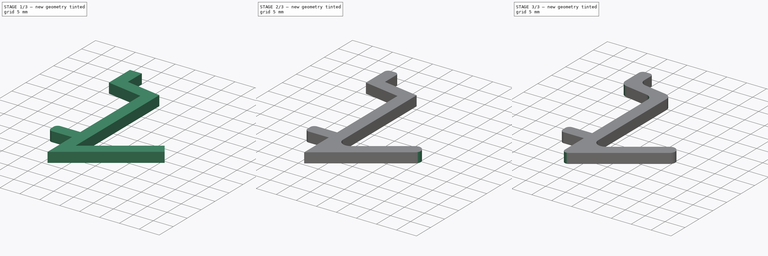
[diagram: build sequence overview — one tinted view per stage of 3, left to right]
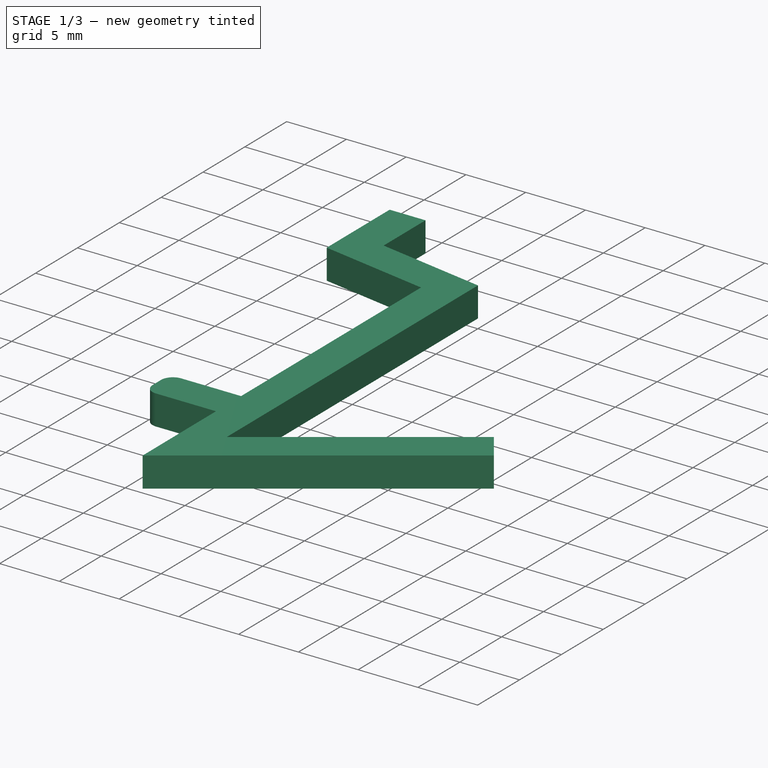
[diagram: stage 1 of 3 — iso view after this stage's code; geometry added in this stage tinted green]
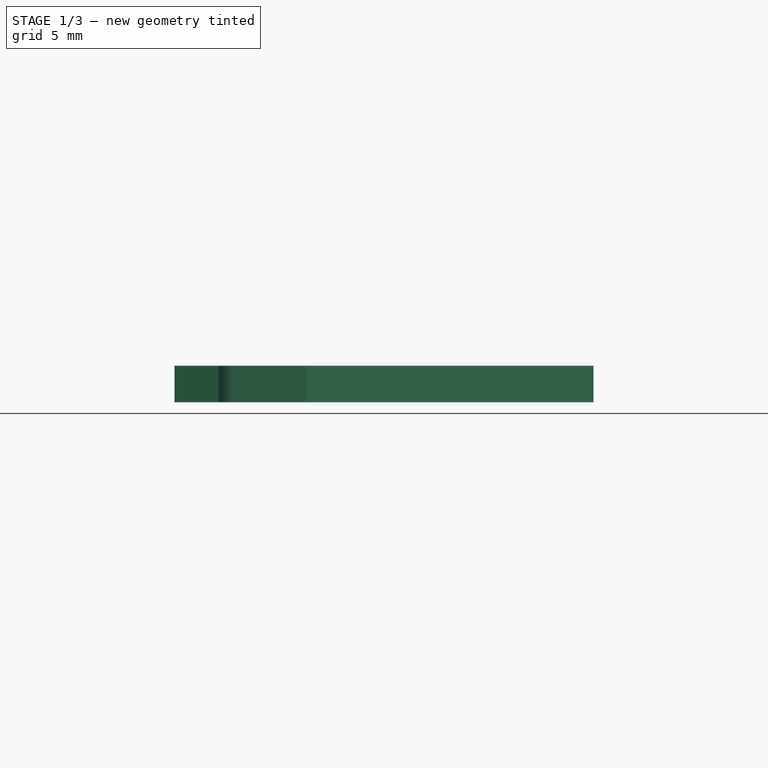
[diagram: stage 1 of 3 — front view after this stage's code; geometry added in this stage tinted green]
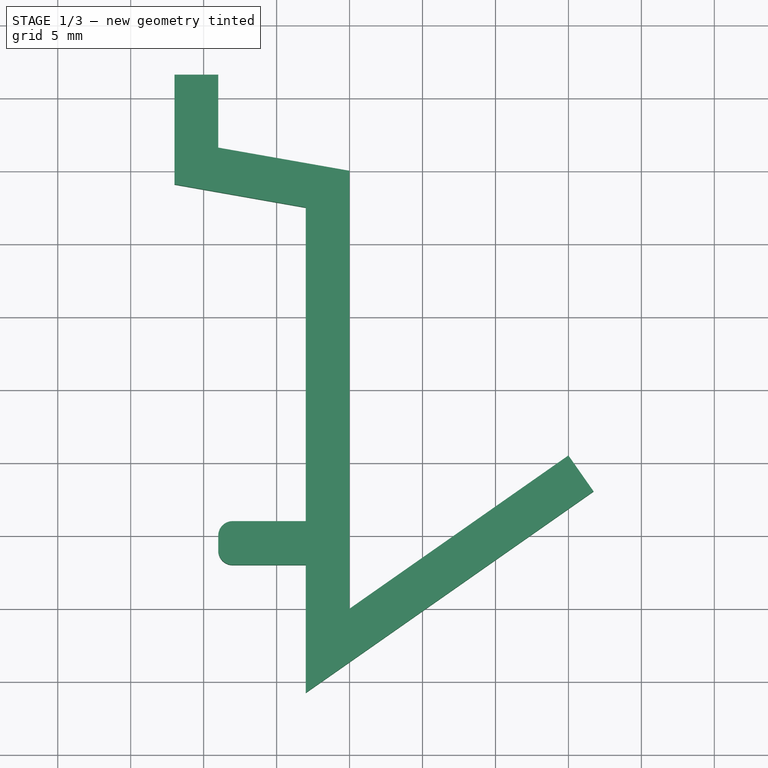
[diagram: stage 1 of 3 — top view after this stage's code; geometry added in this stage tinted green]
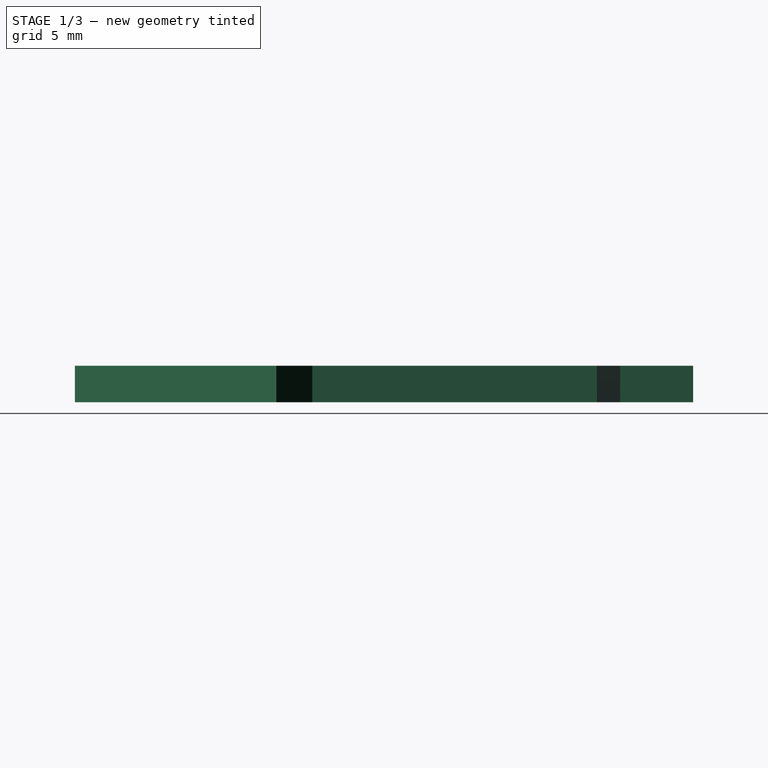
[diagram: stage 1 of 3 — right view after this stage's code; geometry added in this stage tinted green]
FCSTD DOCUMENT  (FreeCAD 0.17R11141 (Git))
Label: printhead-hook
License: All rights reserved
LicenseURL: http://en.wikipedia.org/wiki/All_rights_reserved
objects: PartDesign::Fillet×6, Sketcher::SketchObject×1, PartDesign::Pad×1, PartDesign::Body×1
note: 10 computed .brp shape members not serialized (recipe doc carries the construction recipe); baked Part::Feature solids carry a one-line shape summary decoded from their .brp

FEATURE [Sketcher::SketchObject] Sketch
  MapMode = 5
  Support = -> [XY_Plane]
  sketch-geometry (15):
    g0: LineSegment StartX=0 StartY=0 StartZ=0 EndX=15 EndY=10.5031 EndZ=0
    g1: LineSegment StartX=15 StartY=10.5031 StartZ=0 EndX=16.7207 EndY=8.04566 EndZ=0
    g2: LineSegment StartX=16.7207 StartY=8.04566 StartZ=0 EndX=-3 EndY=-5.76295 EndZ=0
    g3: LineSegment StartX=-3 StartY=-5.76295 StartZ=0 EndX=-3 EndY=3 EndZ=0
    g4: LineSegment StartX=-3 StartY=3 StartZ=0 EndX=-9 EndY=3 EndZ=0
    g5: LineSegment StartX=-9 StartY=3 StartZ=0 EndX=-9 EndY=6 EndZ=0
    g6: LineSegment StartX=-9 StartY=6 StartZ=0 EndX=-3 EndY=6 EndZ=0
    g7: LineSegment StartX=-3 StartY=6 StartZ=0 EndX=-3 EndY=27.5 EndZ=0
    g8: LineSegment StartX=-3 StartY=27.5 StartZ=0 EndX=-12 EndY=29.0869 EndZ=0
    g9: LineSegment StartX=-12 StartY=29.0869 StartZ=0 EndX=-12 EndY=36.6042 EndZ=0
    g10: LineSegment StartX=-12 StartY=36.6042 StartZ=0 EndX=-9 EndY=36.6042 EndZ=0
    g11: LineSegment StartX=-9 StartY=36.6042 StartZ=0 EndX=-9 EndY=31.6042 EndZ=0
    g12: LineSegment StartX=-9 StartY=31.6042 StartZ=0 EndX=0 EndY=30.0173 EndZ=0
    g13: LineSegment StartX=0 StartY=30.0173 StartZ=0 EndX=0 EndY=0 EndZ=0
    g14: LineSegment [constr] StartX=-9 StartY=31.6042 StartZ=0 EndX=-9.52094 EndY=28.6498 EndZ=0
  constraints (44):
    c: Coincident(g-1,g0)
    c: Coincident(g0,g1)
    c: Coincident(g1,g2)
    c: Coincident(g2,g3)
    c: Vertical(g3)
    c: Coincident(g3,g4)
    c: Horizontal(g4)
    c: Coincident(g4,g5)
    c: Vertical(g5)
    c: Coincident(g5,g6)
    c: Horizontal(g6)
    c: Coincident(g6,g7)
    c: Vertical(g7)
    c: Coincident(g7,g8)
    c: Coincident(g8,g9)
    c: Vertical(g9)
    c: Coincident(g9,g10)
    c: Horizontal(g10)
    c: Coincident(g10,g11)
    c: Vertical(g11)
    c: Coincident(g11,g12)
    c: PointOnObject(g12,g-2)
    c: Coincident(g12,g13)
    c: Coincident(g13,g-1)
    c: Parallel(g2,g0)
    c: PointOnObject(g6,g3)
    c: Parallel(g8,g12)
    c: DistanceX(g2,g-1) = 3
    c: DistanceY(g5,g5) = 3
    c: Perpendicular(g0,g1)
    c: Distance(g1) = 3
    c: DistanceX(g6,g6) = 6
    c: DistanceY(g-1,g3) = 3
    c: Coincident(g14,g11)
    c: PointOnObject(g14,g8)
    c: Perpendicular(g12,g14)
    c: Distance(g14) = 3
    c: Angle(g8,g7) = 1.74533
    c: DistanceX(g10,g10) = 3
    c: DistanceY(g11,g11) = 5
    c: DistanceY(g7,g7) = 21.5
    c: DistanceX(g12,g12) = 9
    c: DistanceX(g0,g0) = 15
    c: Angle(g0,g13) = 0.959931
FEATURE [PartDesign::Pad] Pad
  Length = 2.5
  Length2 = 100
  Profile = -> Sketch
  Type = 0
FEATURE [PartDesign::Fillet] Fillet
  Base = -> Pad [Edge14,Edge17]
  BaseFeature = -> Pad
  Radius = 0.99
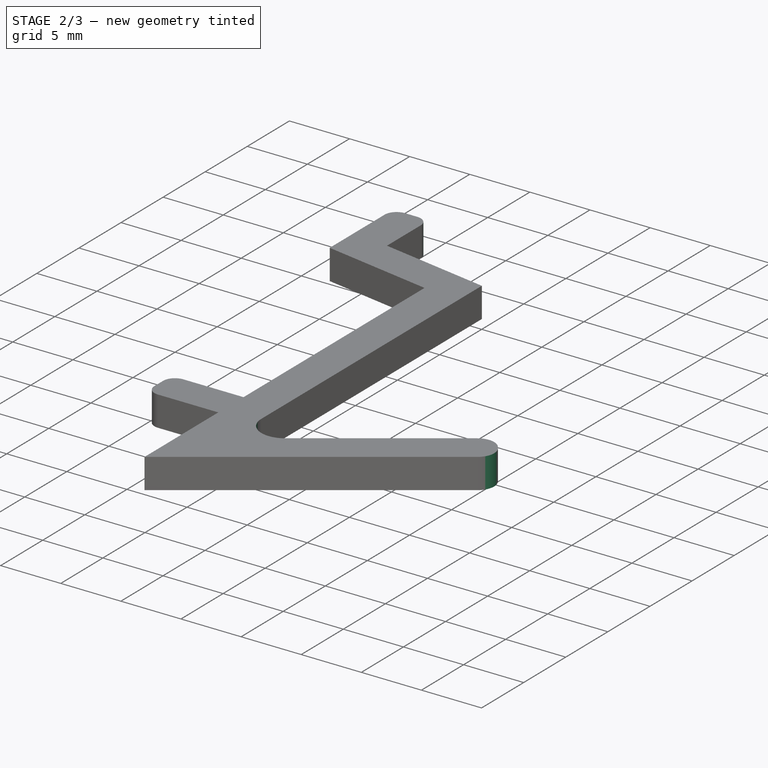
[diagram: stage 2 of 3 — iso view after this stage's code; geometry added in this stage tinted green]
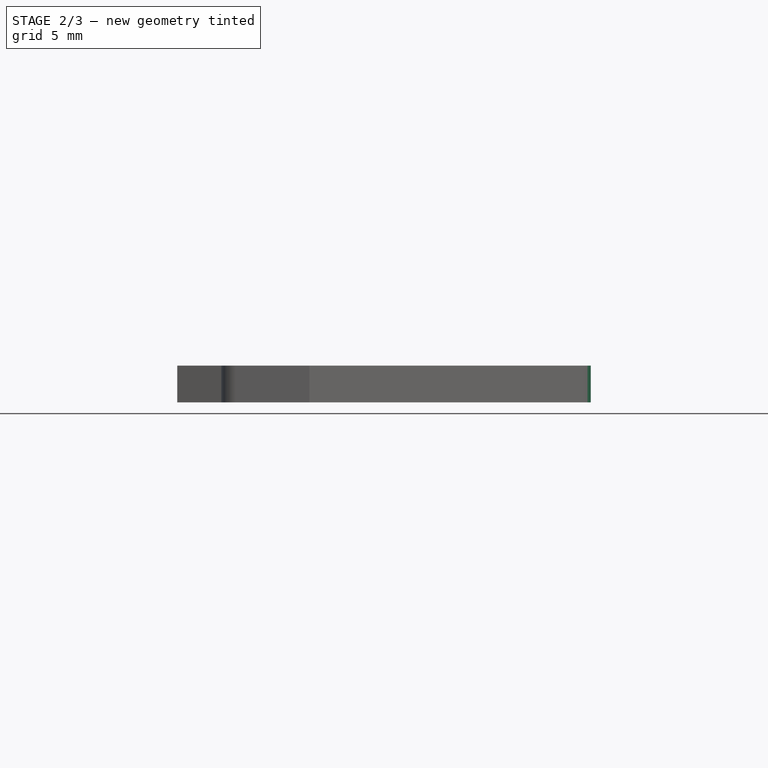
[diagram: stage 2 of 3 — front view after this stage's code; geometry added in this stage tinted green]
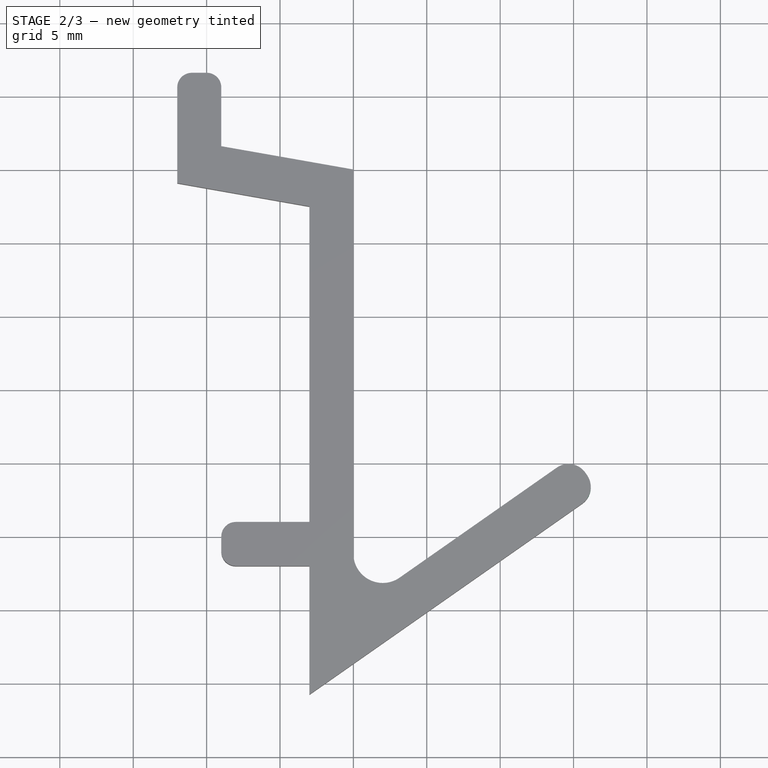
[diagram: stage 2 of 3 — top view after this stage's code; geometry added in this stage tinted green]
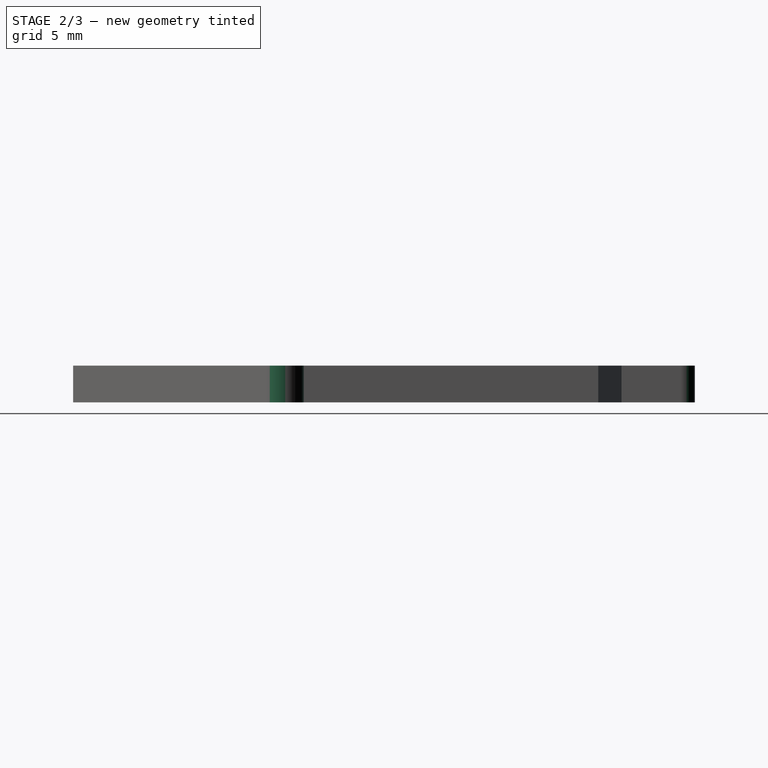
[diagram: stage 2 of 3 — right view after this stage's code; geometry added in this stage tinted green]
FEATURE [PartDesign::Fillet] Fillet001
  Base = -> Fillet [Edge47,Edge48]
  BaseFeature = -> Fillet
  Radius = 0.99
FEATURE [PartDesign::Fillet] Fillet002
  Base = -> Fillet001 [Edge46,Edge50]
  BaseFeature = -> Fillet001
  Radius = 1.4
FEATURE [PartDesign::Fillet] Fillet003
  Base = -> Fillet002 [Edge22]
  BaseFeature = -> Fillet002
  Radius = 2
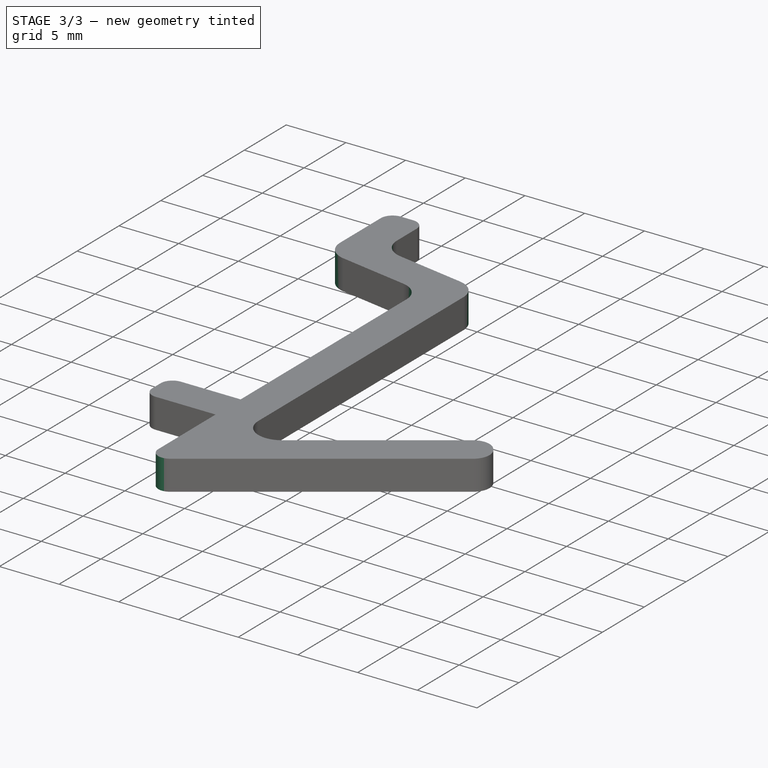
[diagram: stage 3 of 3 — iso view after this stage's code; geometry added in this stage tinted green]
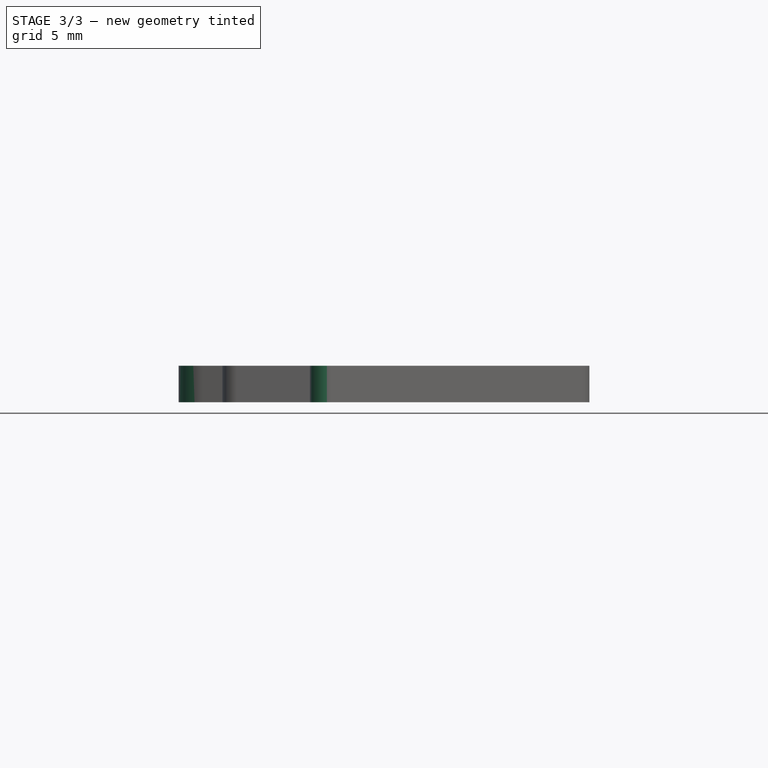
[diagram: stage 3 of 3 — front view after this stage's code; geometry added in this stage tinted green]
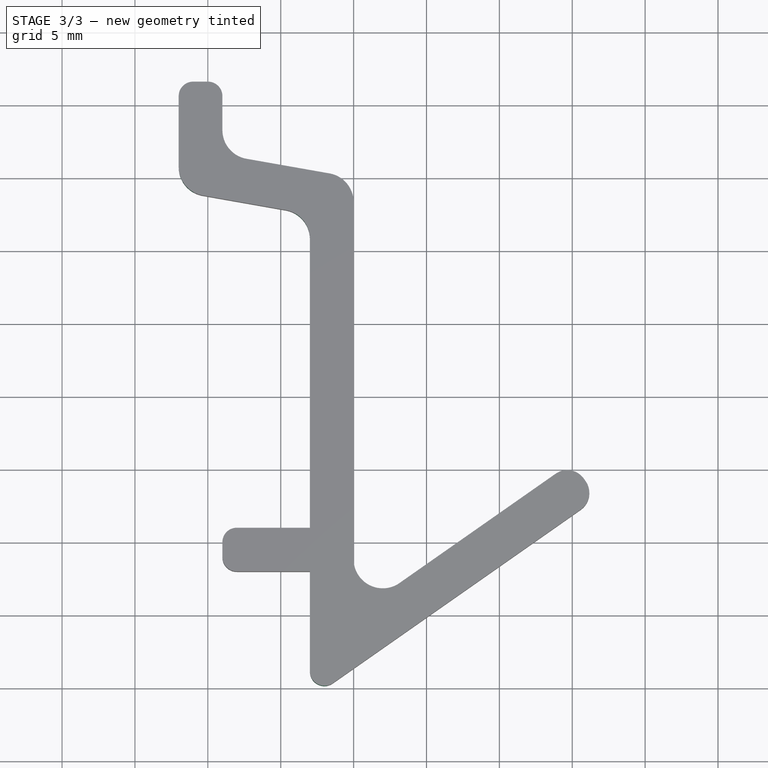
[diagram: stage 3 of 3 — top view after this stage's code; geometry added in this stage tinted green]
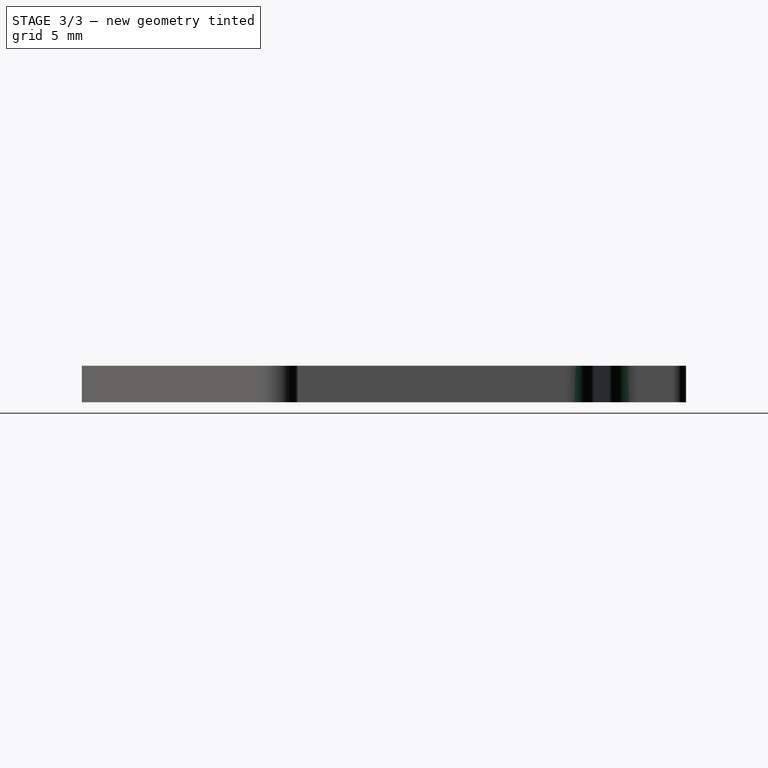
[diagram: stage 3 of 3 — right view after this stage's code; geometry added in this stage tinted green]
FEATURE [PartDesign::Fillet] Fillet004
  Base = -> Fillet003 [Edge39]
  BaseFeature = -> Fillet003
  Radius = 1
FEATURE [PartDesign::Fillet] Fillet005
  Base = -> Fillet004 [Edge58,Edge54,Edge48,Edge52]
  BaseFeature = -> Fillet004
  Radius = 2
FEATURE [PartDesign::Body] Body
  Group = -> [Sketch,Pad,Fillet,Fillet001,Fillet002,Fillet003,Fillet004,Fillet005]
  Origin = -> BodyOrigin
  Tip = -> Fillet005
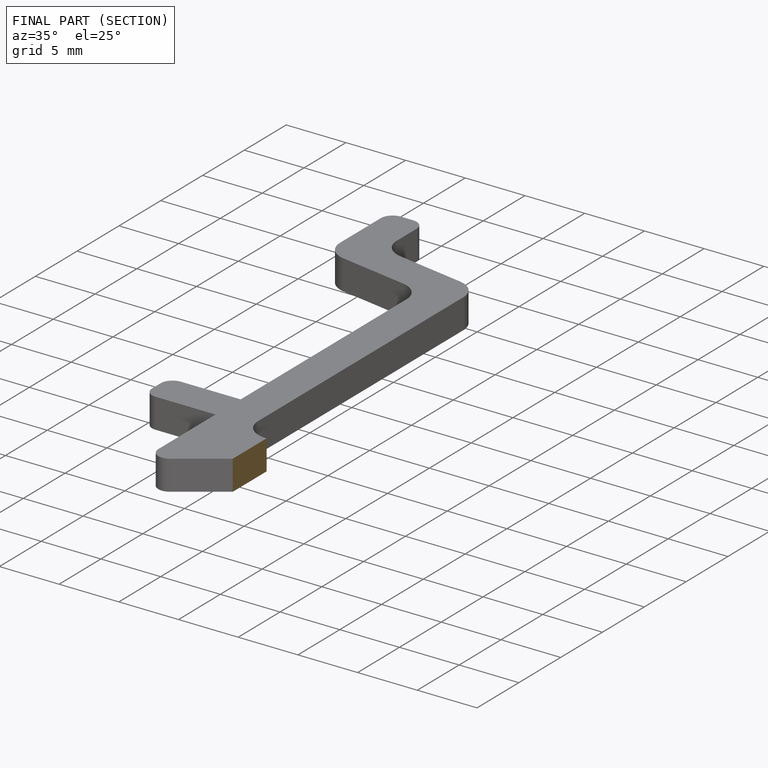
[diagram: finished part — half-section view (interior)]
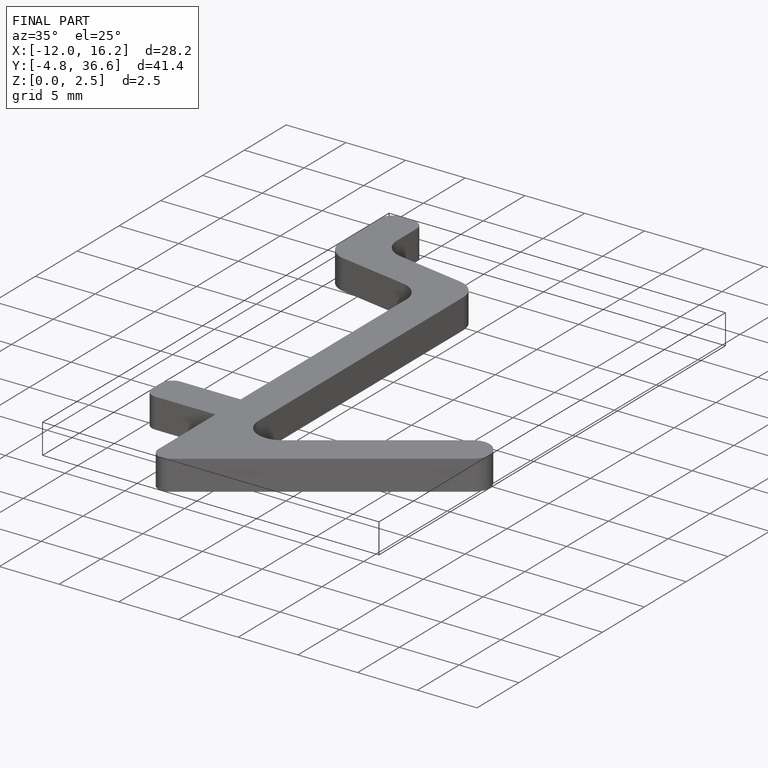
[diagram: finished part — iso view with bounding-box wireframe]
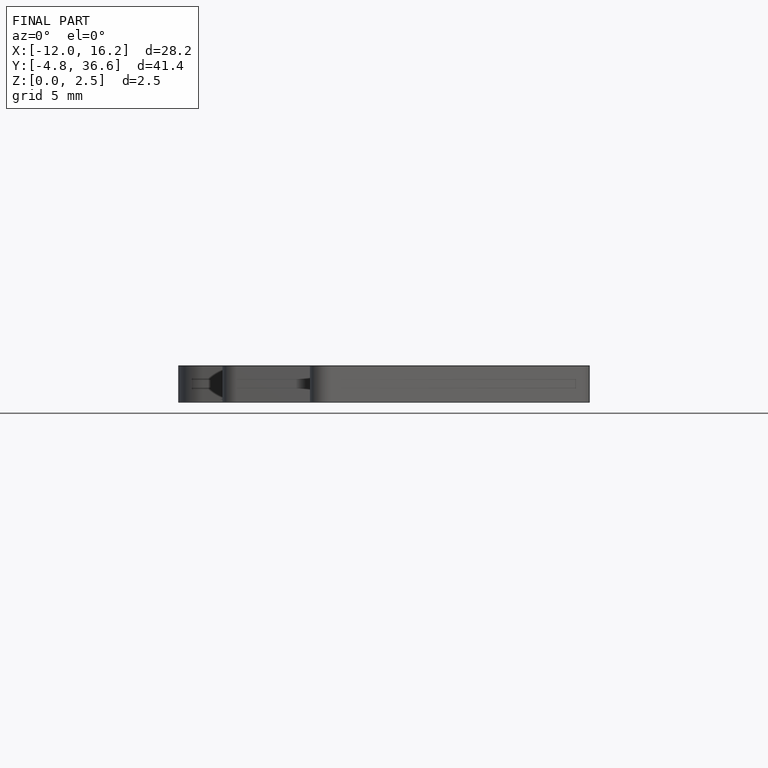
[diagram: finished part — front view with bounding-box wireframe]
